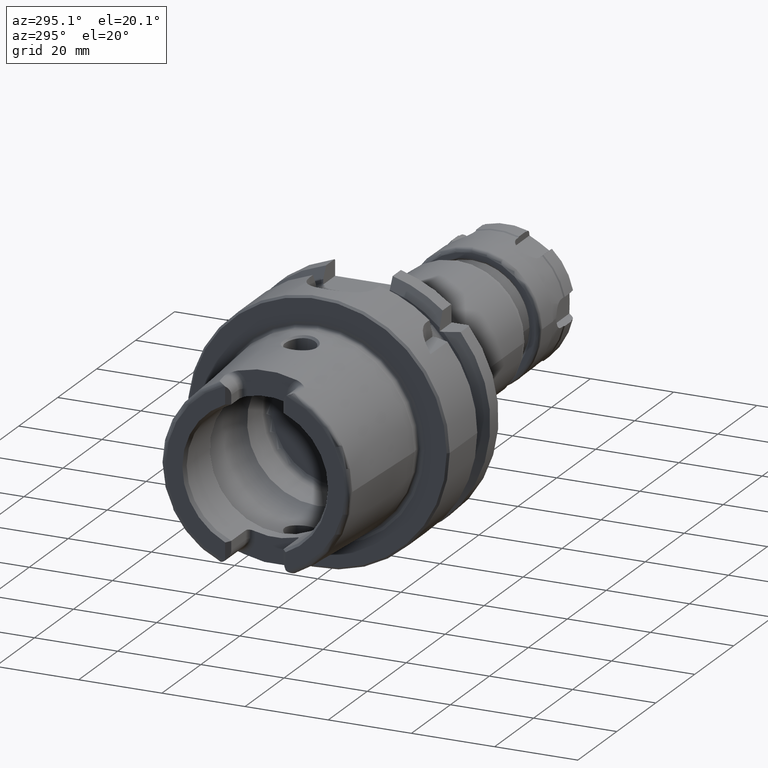
[diagram: clean part render]
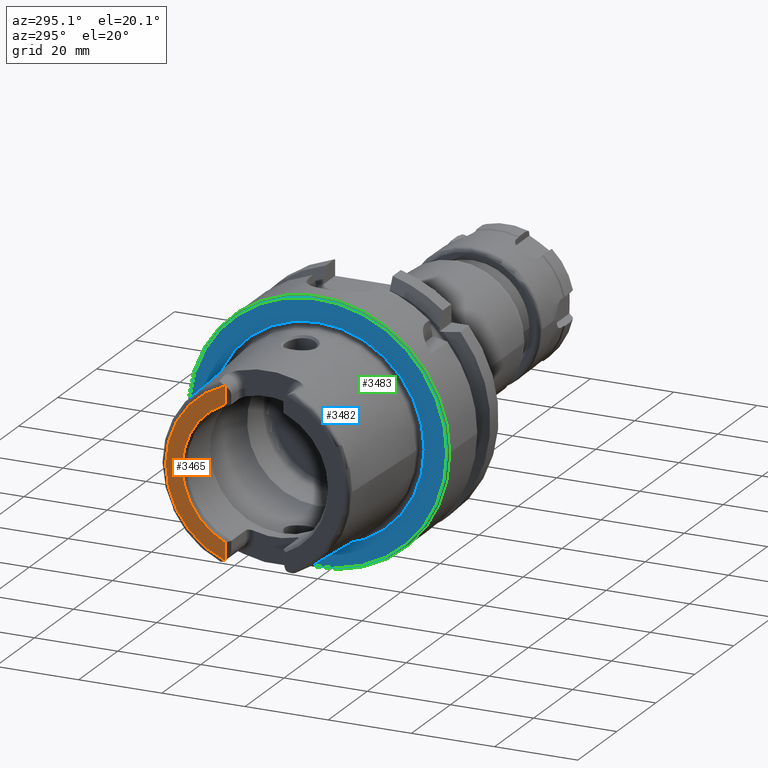
[diagram: same view with three faces highlighted in distinct colors, each labeled with its STEP entity id]
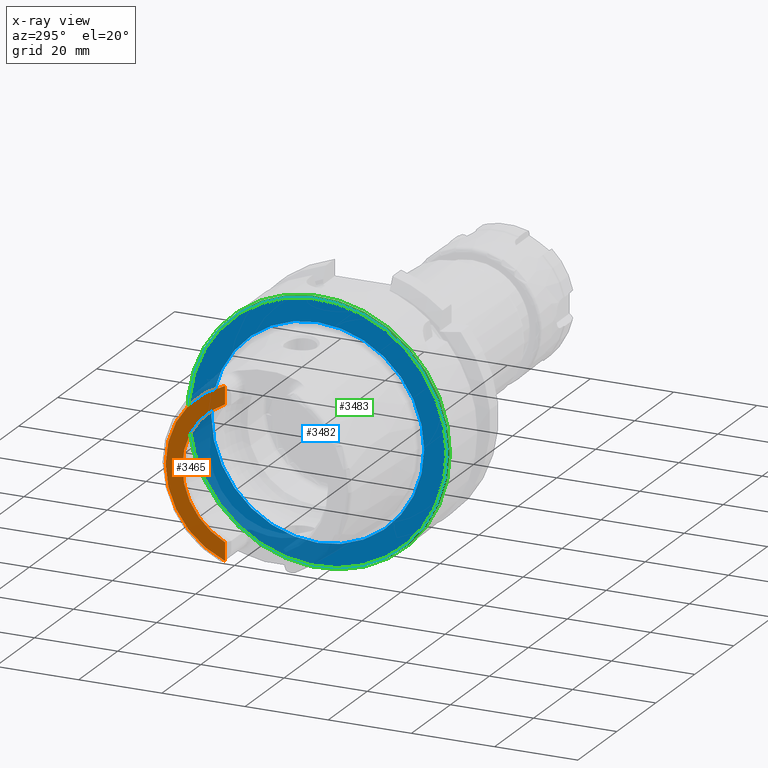
[diagram: x-ray of the same camera — body ghosted, the three highlighted faces saturated]
A machine part, auxiliary view with three faces highlighted in distinct colors.
The next image is the same camera in x-ray (body ghosted, the three faces saturated) — at least one of them is partly hidden behind the body in this view.
Their STEP definitions:

[orange] entity #3465 — the highlighted planar face has unit normal (-1, 0, 0).
#222=PLANE('',#3851);
#444=FACE_OUTER_BOUND('',#651,.T.);
#651=EDGE_LOOP('',(#2798,#2799,#2800,#2801,#2802,#2803));
#789=LINE('',#5271,#973);
#799=LINE('',#5364,#983);
#973=VECTOR('',#4217,10.);
#983=VECTOR('',#4255,10.);
#1169=CIRCLE('',#3699,2.88);
#1175=CIRCLE('',#3714,2.88);
#1243=CIRCLE('',#3850,17.5773502691896);
#1244=CIRCLE('',#3852,21.5760400159857);
#1395=VERTEX_POINT('',#5264);
#1398=VERTEX_POINT('',#5269);
#1401=VERTEX_POINT('',#5279);
#1416=VERTEX_POINT('',#5361);
#1417=VERTEX_POINT('',#5363);
#1422=VERTEX_POINT('',#5382);
#1769=EDGE_CURVE('',#1398,#1395,#789,.T.);
#1773=EDGE_CURVE('',#1401,#1395,#1169,.T.);
#1791=EDGE_CURVE('',#1416,#1417,#799,.T.);
#1798=EDGE_CURVE('',#1416,#1422,#1175,.T.);
#1993=EDGE_CURVE('',#1417,#1398,#1243,.T.);
#1994=EDGE_CURVE('',#1401,#1422,#1244,.T.);
#2798=ORIENTED_EDGE('',*,*,#1769,.F.);
#2799=ORIENTED_EDGE('',*,*,#1993,.F.);
#2800=ORIENTED_EDGE('',*,*,#1791,.F.);
#2801=ORIENTED_EDGE('',*,*,#1798,.T.);
#2802=ORIENTED_EDGE('',*,*,#1994,.F.);
#2803=ORIENTED_EDGE('',*,*,#1773,.T.);
#3465=ADVANCED_FACE('',(#444),#222,.T.);
#3699=AXIS2_PLACEMENT_3D('',#5280,#4225,#4226);
#3714=AXIS2_PLACEMENT_3D('',#5395,#4264,#4265);
#3850=AXIS2_PLACEMENT_3D('',#6511,#4599,#4600);
#3851=AXIS2_PLACEMENT_3D('',#6512,#4601,#4602);
#3852=AXIS2_PLACEMENT_3D('',#6513,#4603,#4604);
#4217=DIRECTION('',(0.,0.,-1.));
#4225=DIRECTION('center_axis',(-1.,0.,0.));
#4226=DIRECTION('ref_axis',(0.,-0.453346760926793,0.891334232685576));
#4255=DIRECTION('',(0.,1.58830189502884E-16,-1.));
#4264=DIRECTION('center_axis',(-1.,0.,0.));
#4265=DIRECTION('ref_axis',(0.,1.,0.));
#4599=DIRECTION('center_axis',(-1.,0.,0.));
#4600=DIRECTION('ref_axis',(0.,-1.,0.));
#4601=DIRECTION('center_axis',(-1.,0.,0.));
#4602=DIRECTION('ref_axis',(0.,0.,1.));
#4603=DIRECTION('center_axis',(1.,0.,0.));
#4604=DIRECTION('ref_axis',(0.,0.,-1.));
#5264=CARTESIAN_POINT('',(-32.,7.27,-20.1717424229271));
#5269=CARTESIAN_POINT('',(-32.,7.27,-16.003447831195));
#5271=CARTESIAN_POINT('',(-32.,7.27,-5.5));
#5279=CARTESIAN_POINT('',(-32.,7.39118810947246,-20.2705658801576));
#5280=CARTESIAN_POINT('Origin',(-32.,9.15,-17.99));
#5361=CARTESIAN_POINT('',(-32.,7.27,20.1717424229271));
#5363=CARTESIAN_POINT('',(-32.,7.27,16.003447831195));
#5364=CARTESIAN_POINT('',(-32.,7.27,8.995));
#5382=CARTESIAN_POINT('',(-32.,7.39118810947246,20.2705658801576));
#5395=CARTESIAN_POINT('Origin',(-32.,9.15,17.99));
#6511=CARTESIAN_POINT('Origin',(-32.,0.,0.));
#6512=CARTESIAN_POINT('Origin',(-32.,21.5760400159857,0.));
#6513=CARTESIAN_POINT('Origin',(-32.,0.,0.));

[blue] entity #3482 — the highlighted planar face has unit normal (-1, 0, 0).
#180=FACE_BOUND('',#672,.T.);
#228=PLANE('',#3888);
#461=FACE_OUTER_BOUND('',#671,.T.);
#671=EDGE_LOOP('',(#2875));
#672=EDGE_LOOP('',(#2876));
#1263=CIRCLE('',#3887,25.5879092835167);
#1264=CIRCLE('',#3889,31.);
#1553=VERTEX_POINT('',#6565);
#1554=VERTEX_POINT('',#6569);
#2018=EDGE_CURVE('',#1553,#1553,#1263,.T.);
#2019=EDGE_CURVE('',#1554,#1554,#1264,.T.);
#2875=ORIENTED_EDGE('',*,*,#2019,.F.);
#2876=ORIENTED_EDGE('',*,*,#2018,.T.);
#3482=ADVANCED_FACE('',(#461,#180),#228,.T.);
#3887=AXIS2_PLACEMENT_3D('',#6567,#4678,#4679);
#3888=AXIS2_PLACEMENT_3D('',#6568,#4680,#4681);
#3889=AXIS2_PLACEMENT_3D('',#6570,#4682,#4683);
#4678=DIRECTION('center_axis',(1.,0.,0.));
#4679=DIRECTION('ref_axis',(0.,0.,-1.));
#4680=DIRECTION('center_axis',(-1.,0.,0.));
#4681=DIRECTION('ref_axis',(0.,0.,1.));
#4682=DIRECTION('center_axis',(1.,0.,0.));
#4683=DIRECTION('ref_axis',(0.,0.,-1.));
#6565=CARTESIAN_POINT('',(-3.55618312575245E-16,-25.5879092835167,-3.13361512009315E-15));
#6567=CARTESIAN_POINT('Origin',(0.,0.,0.));
#6568=CARTESIAN_POINT('Origin',(0.,31.,0.));
#6569=CARTESIAN_POINT('',(-5.89805981832114E-16,-31.,-3.7964050773568E-15));
#6570=CARTESIAN_POINT('Origin',(0.,0.,0.));

[green] entity #3483 — the highlighted conical surface has half-angle 45 deg.
#462=FACE_OUTER_BOUND('',#673,.T.);
#673=EDGE_LOOP('',(#2877,#2878,#2879,#2880));
#870=LINE('',#6572,#1054);
#1054=VECTOR('',#4686,31.25);
#1223=CIRCLE('',#3812,31.5);
#1264=CIRCLE('',#3889,31.);
#1528=VERTEX_POINT('',#6413);
#1554=VERTEX_POINT('',#6569);
#1962=EDGE_CURVE('',#1528,#1528,#1223,.T.);
#2019=EDGE_CURVE('',#1554,#1554,#1264,.T.);
#2020=EDGE_CURVE('',#1528,#1554,#870,.T.);
#2877=ORIENTED_EDGE('',*,*,#1962,.F.);
#2878=ORIENTED_EDGE('',*,*,#2020,.T.);
#2879=ORIENTED_EDGE('',*,*,#2019,.T.);
#2880=ORIENTED_EDGE('',*,*,#2020,.F.);
#3338=CONICAL_SURFACE('',#3890,31.25,0.785398163397447);
#3483=ADVANCED_FACE('',(#462),#3338,.T.);
#3812=AXIS2_PLACEMENT_3D('',#6415,#4516,#4517);
#3889=AXIS2_PLACEMENT_3D('',#6570,#4682,#4683);
#3890=AXIS2_PLACEMENT_3D('',#6571,#4684,#4685);
#4516=DIRECTION('center_axis',(1.,0.,0.));
#4517=DIRECTION('ref_axis',(0.,0.,-1.));
#4682=DIRECTION('center_axis',(1.,0.,0.));
#4683=DIRECTION('ref_axis',(0.,0.,-1.));
#4684=DIRECTION('center_axis',(1.,0.,0.));
#4685=DIRECTION('ref_axis',(0.,1.,0.));
#4686=DIRECTION('',(-0.707106781186549,0.707106781186546,8.65956056235492E-17));
#6413=CARTESIAN_POINT('',(0.5,-31.5,-3.85763741731416E-15));
#6415=CARTESIAN_POINT('Origin',(0.5,0.,0.));
#6569=CARTESIAN_POINT('',(-5.89805981832114E-16,-31.,-3.7964050773568E-15));
#6570=CARTESIAN_POINT('Origin',(0.,0.,0.));
#6571=CARTESIAN_POINT('Origin',(0.25,0.,0.));
#6572=CARTESIAN_POINT('',(0.25,-31.25,-3.82702124733548E-15));